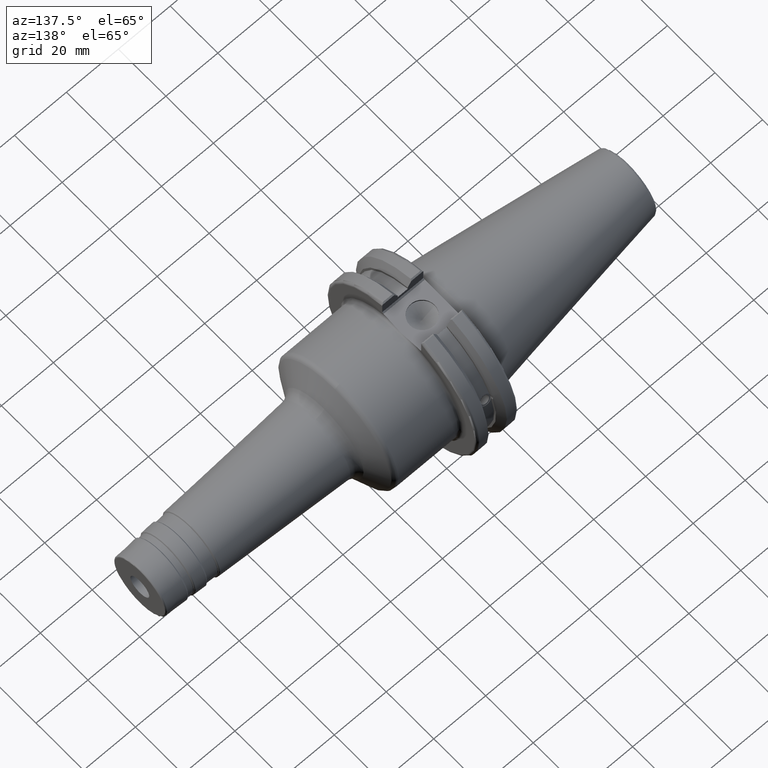
[diagram: clean part render]
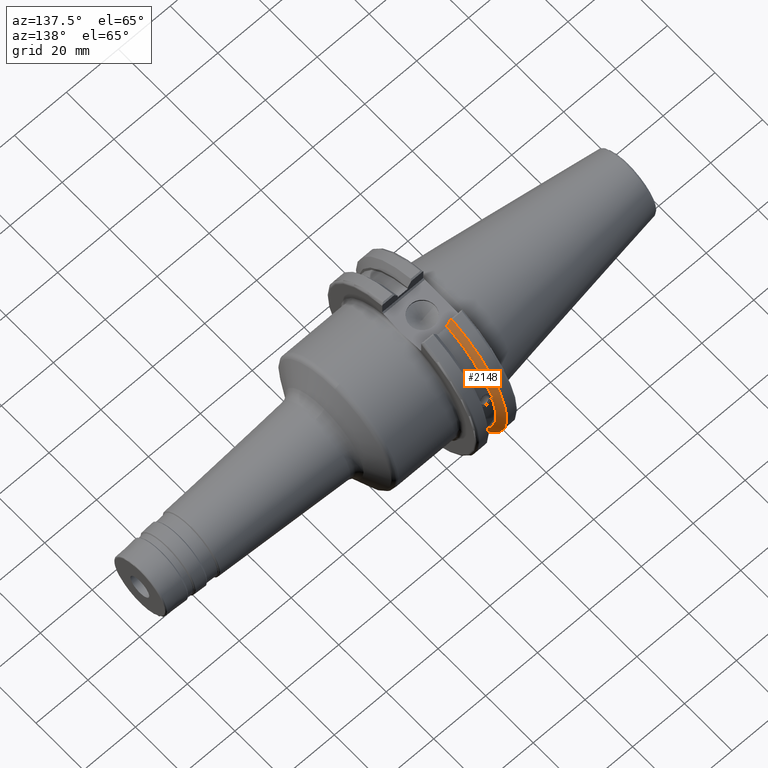
[diagram: same view with one face highlighted and labeled with its STEP entity id]
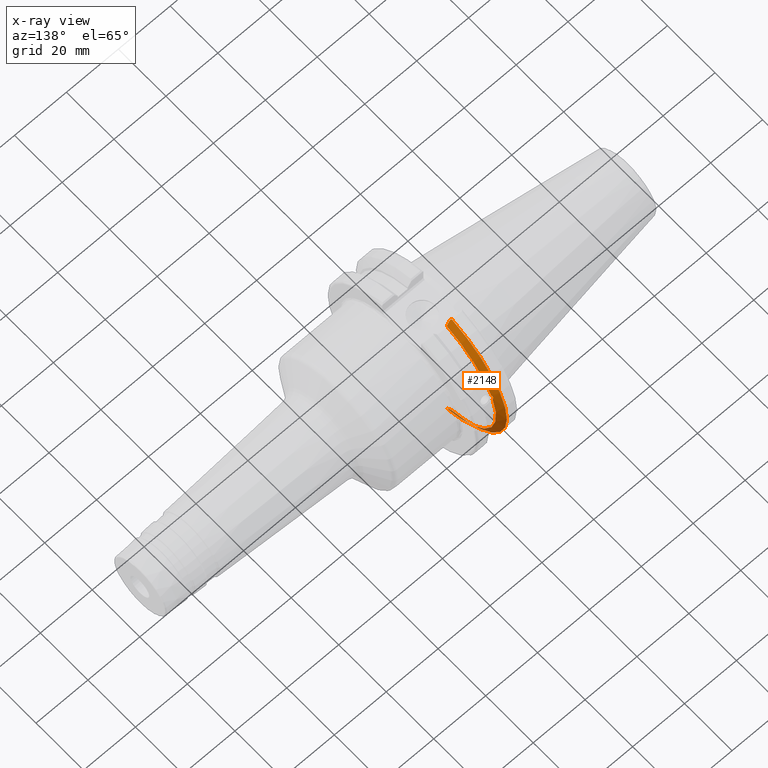
[diagram: x-ray of the same camera — body ghosted, the highlighted face saturated]
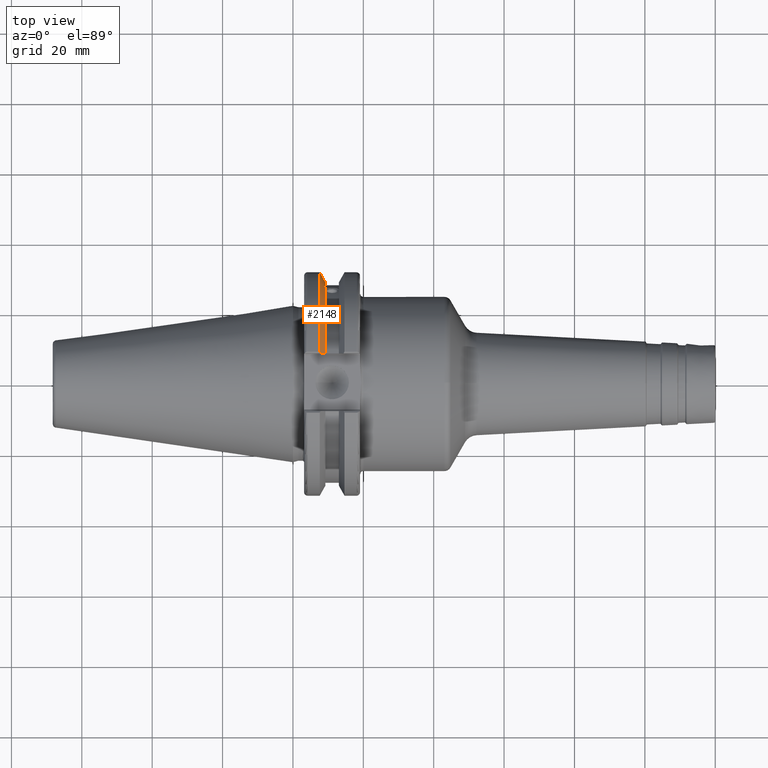
[diagram: same view with one face highlighted and labeled with its STEP entity id]
A machine part, auxiliary view. The second image highlights one B-rep face of the part: STEP entity #2148.
The next image is the same camera in x-ray: the body ghosted, the highlighted face saturated — about 5% of this face is hidden behind the body in this view.
A second angle (top view) of the same face is appended — the face is thin or edge-on in the first view.
In plain terms, the highlighted conical surface has half-angle 60 deg.
Its self-contained STEP definition (entity closure, byte-faithful):
#19=(
BOUNDED_CURVE()
B_SPLINE_CURVE(2,(#3891,#3892,#3893),.UNSPECIFIED.,.F.,.F.)
B_SPLINE_CURVE_WITH_KNOTS((3,3),(0.,0.276549142796136),.UNSPECIFIED.)
CURVE()
GEOMETRIC_REPRESENTATION_ITEM()
RATIONAL_B_SPLINE_CURVE((1.,1.00095203903316,1.00031614444813))
REPRESENTATION_ITEM('')
);
#20=(
BOUNDED_CURVE()
B_SPLINE_CURVE(2,(#3895,#3896,#3897),.UNSPECIFIED.,.F.,.F.)
B_SPLINE_CURVE_WITH_KNOTS((3,3),(0.,0.0639048713676127),.UNSPECIFIED.)
CURVE()
GEOMETRIC_REPRESENTATION_ITEM()
RATIONAL_B_SPLINE_CURVE((1.,1.00028444218281,1.00047644010571))
REPRESENTATION_ITEM('')
);
#21=(
BOUNDED_CURVE()
B_SPLINE_CURVE(2,(#3901,#3902,#3903),.UNSPECIFIED.,.F.,.F.)
B_SPLINE_CURVE_WITH_KNOTS((3,3),(0.329353533631191,0.393258405001024),
 .UNSPECIFIED.)
CURVE()
GEOMETRIC_REPRESENTATION_ITEM()
RATIONAL_B_SPLINE_CURVE((1.00047644010564,1.00028444218277,1.))
REPRESENTATION_ITEM('')
);
#22=(
BOUNDED_CURVE()
B_SPLINE_CURVE(2,(#3905,#3906,#3907),.UNSPECIFIED.,.F.,.F.)
B_SPLINE_CURVE_WITH_KNOTS((3,3),(0.0550586467391943,0.33160778953585),
 .UNSPECIFIED.)
CURVE()
GEOMETRIC_REPRESENTATION_ITEM()
RATIONAL_B_SPLINE_CURVE((1.00031614445155,1.00095203904346,1.))
REPRESENTATION_ITEM('')
);
#133=B_SPLINE_CURVE_WITH_KNOTS('',3,(#3845,#3846,#3847,#3848,#3849,#3850,
#3851,#3852,#3853,#3854,#3855,#3856,#3857,#3858),.UNSPECIFIED.,.F.,.F.,
(4,2,2,2,2,2,4),(0.451995700189024,0.464547828547662,0.504528771685167,
0.544509714822672,0.584490657960177,0.624471601097682,0.637023729456319),
 .UNSPECIFIED.);
#237=FACE_OUTER_BOUND('',#353,.T.);
#353=EDGE_LOOP('',(#1759,#1760,#1761,#1762,#1763,#1764,#1765,#1766));
#739=CIRCLE('',#2417,28.9593772964944);
#740=CIRCLE('',#2418,31.75);
#741=CIRCLE('',#2419,28.9593772964944);
#948=VERTEX_POINT('',#3842);
#949=VERTEX_POINT('',#3844);
#953=VERTEX_POINT('',#3888);
#954=VERTEX_POINT('',#3890);
#955=VERTEX_POINT('',#3894);
#956=VERTEX_POINT('',#3898);
#957=VERTEX_POINT('',#3900);
#958=VERTEX_POINT('',#3904);
#1243=EDGE_CURVE('',#949,#948,#133,.T.);
#1248=EDGE_CURVE('',#953,#948,#739,.T.);
#1249=EDGE_CURVE('',#953,#954,#19,.T.);
#1250=EDGE_CURVE('',#955,#954,#20,.T.);
#1251=EDGE_CURVE('',#955,#956,#740,.T.);
#1252=EDGE_CURVE('',#957,#956,#21,.T.);
#1253=EDGE_CURVE('',#957,#958,#22,.T.);
#1254=EDGE_CURVE('',#949,#958,#741,.T.);
#1759=ORIENTED_EDGE('',*,*,#1243,.T.);
#1760=ORIENTED_EDGE('',*,*,#1248,.F.);
#1761=ORIENTED_EDGE('',*,*,#1249,.T.);
#1762=ORIENTED_EDGE('',*,*,#1250,.F.);
#1763=ORIENTED_EDGE('',*,*,#1251,.T.);
#1764=ORIENTED_EDGE('',*,*,#1252,.F.);
#1765=ORIENTED_EDGE('',*,*,#1253,.T.);
#1766=ORIENTED_EDGE('',*,*,#1254,.F.);
#2085=CONICAL_SURFACE('',#2416,30.3546886482472,1.0471975511966);
#2148=ADVANCED_FACE('',(#237),#2085,.T.);
#2416=AXIS2_PLACEMENT_3D('',#3887,#2964,#2965);
#2417=AXIS2_PLACEMENT_3D('',#3889,#2966,#2967);
#2418=AXIS2_PLACEMENT_3D('',#3899,#2968,#2969);
#2419=AXIS2_PLACEMENT_3D('',#3908,#2970,#2971);
#2964=DIRECTION('center_axis',(-1.,0.,0.));
#2965=DIRECTION('ref_axis',(0.,1.,0.));
#2966=DIRECTION('center_axis',(1.,0.,0.));
#2967=DIRECTION('ref_axis',(0.,0.,-1.));
#2968=DIRECTION('center_axis',(1.,0.,0.));
#2969=DIRECTION('ref_axis',(0.,0.,-1.));
#2970=DIRECTION('center_axis',(1.,0.,0.));
#2971=DIRECTION('ref_axis',(0.,0.,-1.));
#3842=CARTESIAN_POINT('',(9.2191,27.4956274489925,9.09043478536247));
#3844=CARTESIAN_POINT('',(9.2191,26.9060914640648,10.7101715919071));
#3845=CARTESIAN_POINT('Ctrl Pts',(9.2191,26.9060914640648,10.7101715919071));
#3846=CARTESIAN_POINT('Ctrl Pts',(9.20497959280038,26.9406927482839,10.6893765730703));
#3847=CARTESIAN_POINT('Ctrl Pts',(9.19150701821434,26.9744191989197,10.6676007180674));
#3848=CARTESIAN_POINT('Ctrl Pts',(9.13811855884095,27.1113422433188,10.5723885976054));
#3849=CARTESIAN_POINT('Ctrl Pts',(9.09998029158246,27.2180531796526,10.4801333026531));
#3850=CARTESIAN_POINT('Ctrl Pts',(9.04778935539424,27.3968610665578,10.2639559818059));
#3851=CARTESIAN_POINT('Ctrl Pts',(9.0341,27.4684373304961,10.139516340139));
#3852=CARTESIAN_POINT('Ctrl Pts',(9.0341,27.559599249844,9.88905102521651));
#3853=CARTESIAN_POINT('Ctrl Pts',(9.04778935539424,27.5847569104122,9.74771639360671));
#3854=CARTESIAN_POINT('Ctrl Pts',(9.09998029158246,27.5867382255984,9.46717946402648));
#3855=CARTESIAN_POINT('Ctrl Pts',(9.13811855884095,27.5642934663232,9.32791534028656));
#3856=CARTESIAN_POINT('Ctrl Pts',(9.19150701821433,27.5206055003512,9.16696618806878));
#3857=CARTESIAN_POINT('Ctrl Pts',(9.20497959280038,27.5087667900418,9.12860597076219));
#3858=CARTESIAN_POINT('Ctrl Pts',(9.21909999999999,27.4956274489925,9.09043478536247));
#3887=CARTESIAN_POINT('Origin',(8.41351661546218,0.,0.));
#3888=CARTESIAN_POINT('',(9.2191,8.19,-27.7771386827498));
#3889=CARTESIAN_POINT('Origin',(9.2191,0.,0.));
#3890=CARTESIAN_POINT('',(7.88668530351257,8.19,-30.1755016258903));
#3891=CARTESIAN_POINT('Ctrl Pts',(9.2191,8.19,-27.7771386827498));
#3892=CARTESIAN_POINT('Ctrl Pts',(8.58046356152393,8.19,-28.9303689539705));
#3893=CARTESIAN_POINT('Ctrl Pts',(7.88668530351257,8.19,-30.1755016258903));
#3894=CARTESIAN_POINT('',(7.60793323092436,8.67204822802685,-30.5427254764662));
#3895=CARTESIAN_POINT('Ctrl Pts',(7.60793323092436,8.67204822802686,-30.5427254764662));
#3896=CARTESIAN_POINT('Ctrl Pts',(7.74899148121627,8.42917748262647,-30.357706789263));
#3897=CARTESIAN_POINT('Ctrl Pts',(7.88668530351257,8.19,-30.1755016258903));
#3898=CARTESIAN_POINT('',(7.60793323092436,8.67204822802685,30.5427254764662));
#3899=CARTESIAN_POINT('Origin',(7.60793323092436,0.,0.));
#3900=CARTESIAN_POINT('',(7.88668530351256,8.19,30.1755016258903));
#3901=CARTESIAN_POINT('Ctrl Pts',(7.88668530351256,8.19,30.1755016258903));
#3902=CARTESIAN_POINT('Ctrl Pts',(7.74899148121158,8.42917748263469,30.3577067892692));
#3903=CARTESIAN_POINT('Ctrl Pts',(7.60793323092436,8.67204822802686,30.5427254764662));
#3904=CARTESIAN_POINT('',(9.2191,8.19,27.7771386827498));
#3905=CARTESIAN_POINT('Ctrl Pts',(7.88668530351256,8.19,30.1755016258903));
#3906=CARTESIAN_POINT('Ctrl Pts',(8.58046356152345,8.19,28.9303689539713));
#3907=CARTESIAN_POINT('Ctrl Pts',(9.2191,8.19,27.7771386827498));
#3908=CARTESIAN_POINT('Origin',(9.2191,0.,0.));